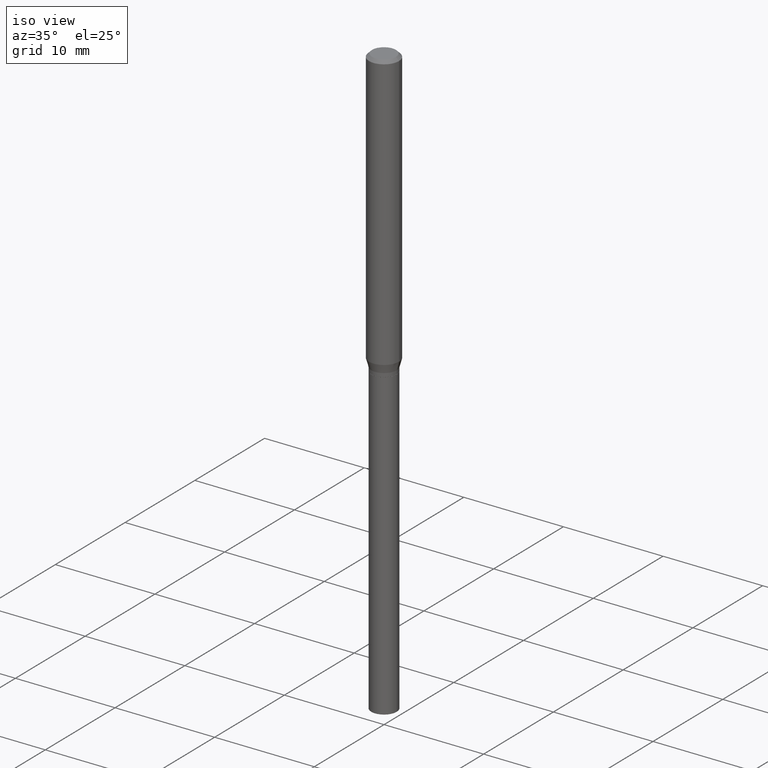
[diagram: clean part render]
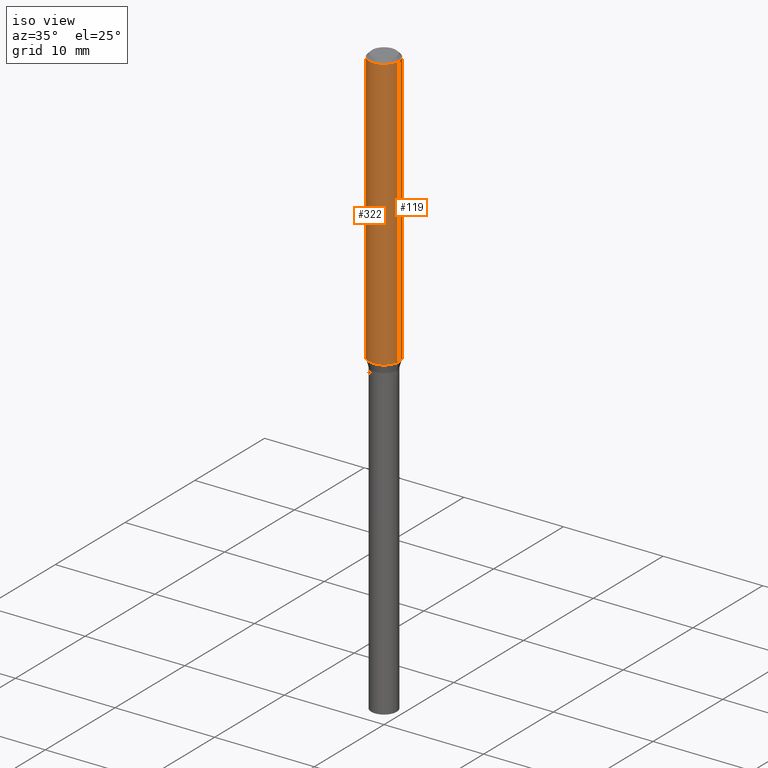
[diagram: same view with one multi-face feature highlighted, each face labeled with its STEP entity id]
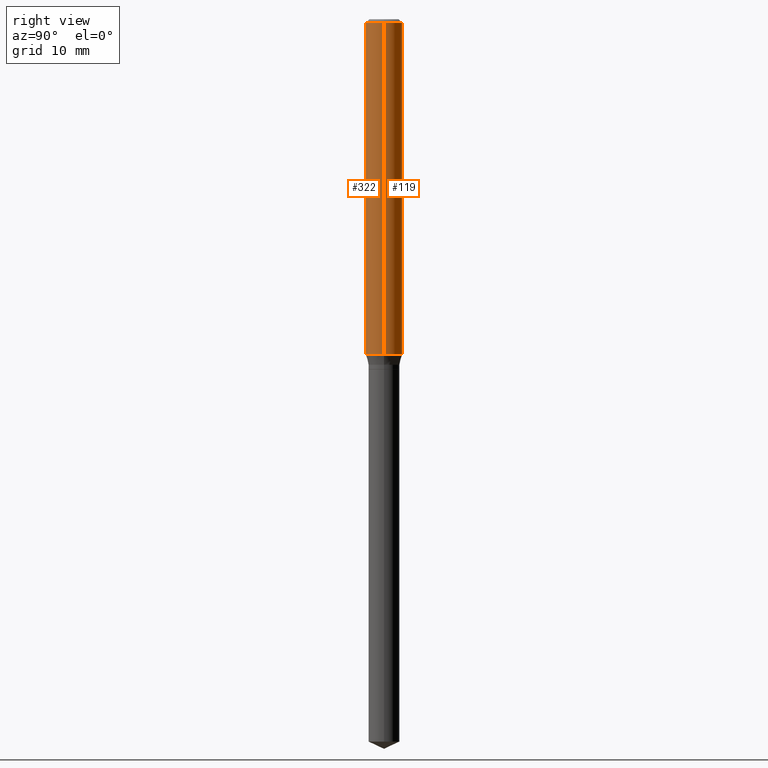
[diagram: same view with one multi-face feature highlighted, each face labeled with its STEP entity id]
A machine part, iso view. The highlighted faces form ONE feature: a constant-radius fillet chain: 2 tangent blend faces with common blend radius 1.4999 mm. The faces share edges in the B-rep.
A second angle (right view) of the same feature is appended — it is thin or edge-on in the first view.
Their STEP definitions:
[1] entity #322 (Cylinder):
#17 = DIRECTION ( 'NONE',  ( -2.445468806185136597E-29, 3.491481338843145583E-15, 1.000000000000000000 ) ) ;
#60 = FACE_OUTER_BOUND ( 'NONE', #104, .T. ) ;
#75 = ORIENTED_EDGE ( 'NONE', *, *, #144, .T. ) ;
#76 = LINE ( 'NONE', #306, #106 ) ;
#80 = ORIENTED_EDGE ( 'NONE', *, *, #112, .F. ) ;
#86 = AXIS2_PLACEMENT_3D ( 'NONE', #462, #193, #156 ) ;
#102 = ORIENTED_EDGE ( 'NONE', *, *, #390, .T. ) ;
#104 = EDGE_LOOP ( 'NONE', ( #449, #75, #102, #80 ) ) ;
#106 = VECTOR ( 'NONE', #414, 39.37007874015748143 ) ;
#112 = EDGE_CURVE ( 'NONE', #484, #287, #307, .T. ) ;
#116 = AXIS2_PLACEMENT_3D ( 'NONE', #122, #230, #385 ) ;
#122 = CARTESIAN_POINT ( 'NONE',  ( 2.655219967937811055E-29, -3.790950408008074668E-15, -1.085771350353014864 ) ) ;
#144 = EDGE_CURVE ( 'NONE', #261, #344, #161, .T. ) ;
#156 = DIRECTION ( 'NONE',  ( 1.000000000000000000, -6.982962677686267499E-15, 0.000000000000000000 ) ) ;
#161 = CIRCLE ( 'NONE', #116, 0.05905000000000013710 ) ;
#179 = DIRECTION ( 'NONE',  ( -2.445468806185136877E-29, 3.491481338843145188E-15, 1.000000000000000000 ) ) ;
#191 = AXIS2_PLACEMENT_3D ( 'NONE', #202, #17, #403 ) ;
#193 = DIRECTION ( 'NONE',  ( -2.445468806185136597E-29, 3.491481338843145583E-15, 1.000000000000000000 ) ) ;
#202 = CARTESIAN_POINT ( 'NONE',  ( 0.000000000000000000, 0.000000000000000000, 0.000000000000000000 ) ) ;
#230 = DIRECTION ( 'NONE',  ( -2.445468806185136597E-29, 3.491481338843145583E-15, 1.000000000000000000 ) ) ;
#261 = VERTEX_POINT ( 'NONE', #474 ) ;
#287 = VERTEX_POINT ( 'NONE', #470 ) ;
#306 = CARTESIAN_POINT ( 'NONE',  ( -0.05905000000000006771, 4.195754854663396409E-16, -2.904631170795525045E-30 ) ) ;
#307 = CIRCLE ( 'NONE', #86, 0.05905000000000000526 ) ;
#318 = CARTESIAN_POINT ( 'NONE',  ( -0.05905000000000000526, -1.496516915843565719E-15, -0.01181000000000007044 ) ) ;
#322 = ADVANCED_FACE ( 'NONE', ( #60 ), #436, .T. ) ;
#326 = CARTESIAN_POINT ( 'NONE',  ( 0.05905000000000013710, -4.203294354125448799E-15, -1.085771350353014864 ) ) ;
#344 = VERTEX_POINT ( 'NONE', #326 ) ;
#373 = CARTESIAN_POINT ( 'NONE',  ( 0.05905000000000006771, -4.123439461173745257E-16, 2.879382386107503723E-30 ) ) ;
#385 = DIRECTION ( 'NONE',  ( 1.000000000000000000, -6.982962677686264344E-15, 0.000000000000000000 ) ) ;
#390 = EDGE_CURVE ( 'NONE', #344, #287, #450, .T. ) ;
#397 = VECTOR ( 'NONE', #179, 39.37007874015748143 ) ;
#403 = DIRECTION ( 'NONE',  ( 1.000000000000000000, -6.982962677686266711E-15, 4.876176775795936353E-29 ) ) ;
#414 = DIRECTION ( 'NONE',  ( -2.445468806185136877E-29, 3.491481338843145188E-15, 1.000000000000000000 ) ) ;
#429 = EDGE_CURVE ( 'NONE', #261, #484, #76, .T. ) ;
#436 = CYLINDRICAL_SURFACE ( 'NONE', #191, 0.05905000000000006771 ) ;
#449 = ORIENTED_EDGE ( 'NONE', *, *, #429, .F. ) ;
#450 = LINE ( 'NONE', #373, #397 ) ;
#462 = CARTESIAN_POINT ( 'NONE',  ( 2.888098660104663766E-31, -4.123439461173779647E-17, -0.01181000000000007044 ) ) ;
#470 = CARTESIAN_POINT ( 'NONE',  ( 0.05905000000000000526, -4.535783407291118600E-16, -0.01181000000000007044 ) ) ;
#474 = CARTESIAN_POINT ( 'NONE',  ( -0.05905000000000013710, -3.371374922541734386E-15, -1.085771350353014864 ) ) ;
#484 = VERTEX_POINT ( 'NONE', #318 ) ;
[2] entity #119 (Cylinder):
#48 = AXIS2_PLACEMENT_3D ( 'NONE', #110, #338, #483 ) ;
#65 = CARTESIAN_POINT ( 'NONE',  ( 2.655219967937811055E-29, -3.790950408008074668E-15, -1.085771350353014864 ) ) ;
#76 = LINE ( 'NONE', #306, #106 ) ;
#82 = CARTESIAN_POINT ( 'NONE',  ( 0.000000000000000000, 0.000000000000000000, 0.000000000000000000 ) ) ;
#106 = VECTOR ( 'NONE', #414, 39.37007874015748143 ) ;
#108 = DIRECTION ( 'NONE',  ( 1.000000000000000000, -6.982962677686264344E-15, 0.000000000000000000 ) ) ;
#110 = CARTESIAN_POINT ( 'NONE',  ( 2.888098660104663766E-31, -4.123439461173779647E-17, -0.01181000000000007044 ) ) ;
#119 = ADVANCED_FACE ( 'NONE', ( #315 ), #194, .T. ) ;
#134 = ORIENTED_EDGE ( 'NONE', *, *, #429, .T. ) ;
#140 = AXIS2_PLACEMENT_3D ( 'NONE', #65, #262, #108 ) ;
#172 = ORIENTED_EDGE ( 'NONE', *, *, #361, .T. ) ;
#179 = DIRECTION ( 'NONE',  ( -2.445468806185136877E-29, 3.491481338843145188E-15, 1.000000000000000000 ) ) ;
#194 = CYLINDRICAL_SURFACE ( 'NONE', #375, 0.05905000000000006771 ) ;
#219 = EDGE_LOOP ( 'NONE', ( #172, #134, #420, #435 ) ) ;
#239 = DIRECTION ( 'NONE',  ( 1.000000000000000000, -6.982962677686266711E-15, 4.876176775795936353E-29 ) ) ;
#261 = VERTEX_POINT ( 'NONE', #474 ) ;
#262 = DIRECTION ( 'NONE',  ( -2.445468806185136597E-29, 3.491481338843145583E-15, 1.000000000000000000 ) ) ;
#287 = VERTEX_POINT ( 'NONE', #470 ) ;
#306 = CARTESIAN_POINT ( 'NONE',  ( -0.05905000000000006771, 4.195754854663396409E-16, -2.904631170795525045E-30 ) ) ;
#315 = FACE_OUTER_BOUND ( 'NONE', #219, .T. ) ;
#318 = CARTESIAN_POINT ( 'NONE',  ( -0.05905000000000000526, -1.496516915843565719E-15, -0.01181000000000007044 ) ) ;
#326 = CARTESIAN_POINT ( 'NONE',  ( 0.05905000000000013710, -4.203294354125448799E-15, -1.085771350353014864 ) ) ;
#338 = DIRECTION ( 'NONE',  ( -2.445468806185136597E-29, 3.491481338843145583E-15, 1.000000000000000000 ) ) ;
#344 = VERTEX_POINT ( 'NONE', #326 ) ;
#355 = CIRCLE ( 'NONE', #140, 0.05905000000000013710 ) ;
#361 = EDGE_CURVE ( 'NONE', #344, #261, #355, .T. ) ;
#373 = CARTESIAN_POINT ( 'NONE',  ( 0.05905000000000006771, -4.123439461173745257E-16, 2.879382386107503723E-30 ) ) ;
#375 = AXIS2_PLACEMENT_3D ( 'NONE', #82, #458, #239 ) ;
#390 = EDGE_CURVE ( 'NONE', #344, #287, #450, .T. ) ;
#397 = VECTOR ( 'NONE', #179, 39.37007874015748143 ) ;
#412 = CIRCLE ( 'NONE', #48, 0.05905000000000000526 ) ;
#414 = DIRECTION ( 'NONE',  ( -2.445468806185136877E-29, 3.491481338843145188E-15, 1.000000000000000000 ) ) ;
#420 = ORIENTED_EDGE ( 'NONE', *, *, #425, .F. ) ;
#425 = EDGE_CURVE ( 'NONE', #287, #484, #412, .T. ) ;
#429 = EDGE_CURVE ( 'NONE', #261, #484, #76, .T. ) ;
#435 = ORIENTED_EDGE ( 'NONE', *, *, #390, .F. ) ;
#450 = LINE ( 'NONE', #373, #397 ) ;
#458 = DIRECTION ( 'NONE',  ( -2.445468806185136597E-29, 3.491481338843145583E-15, 1.000000000000000000 ) ) ;
#470 = CARTESIAN_POINT ( 'NONE',  ( 0.05905000000000000526, -4.535783407291118600E-16, -0.01181000000000007044 ) ) ;
#474 = CARTESIAN_POINT ( 'NONE',  ( -0.05905000000000013710, -3.371374922541734386E-15, -1.085771350353014864 ) ) ;
#483 = DIRECTION ( 'NONE',  ( 1.000000000000000000, -6.982962677686267499E-15, 0.000000000000000000 ) ) ;
#484 = VERTEX_POINT ( 'NONE', #318 ) ;